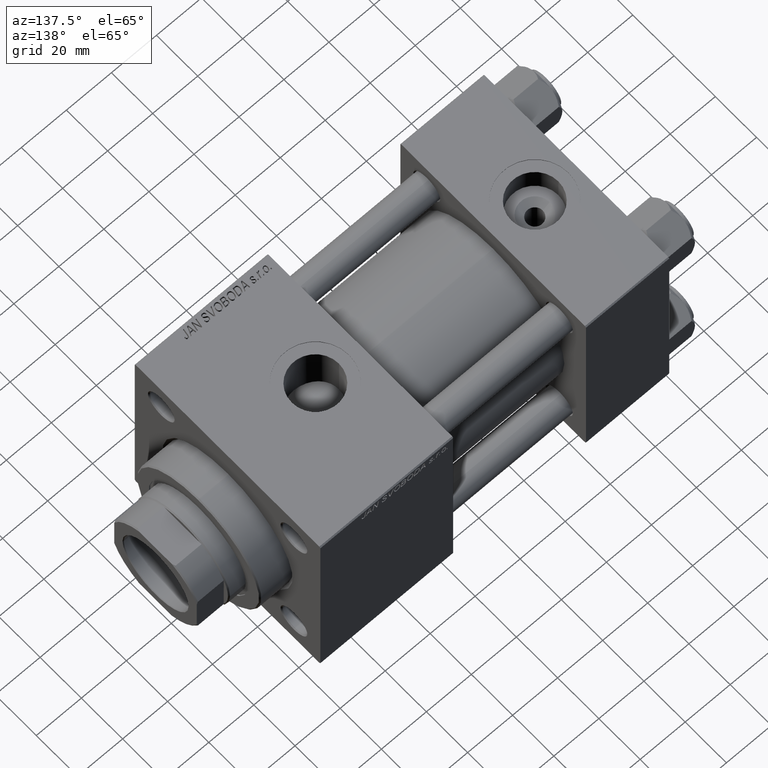
[diagram: clean part render]
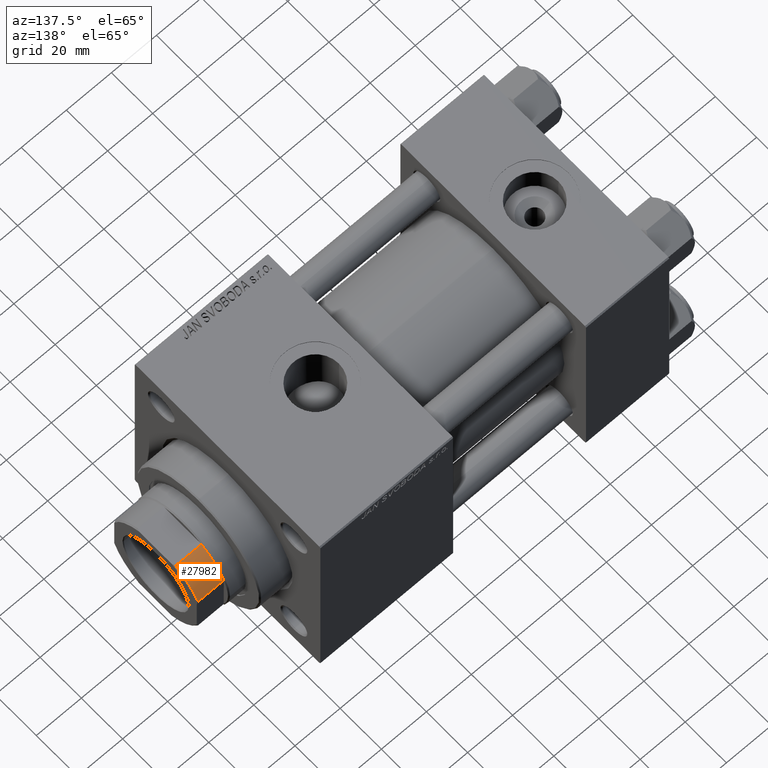
[diagram: same view with one face highlighted and labeled with its STEP entity id]
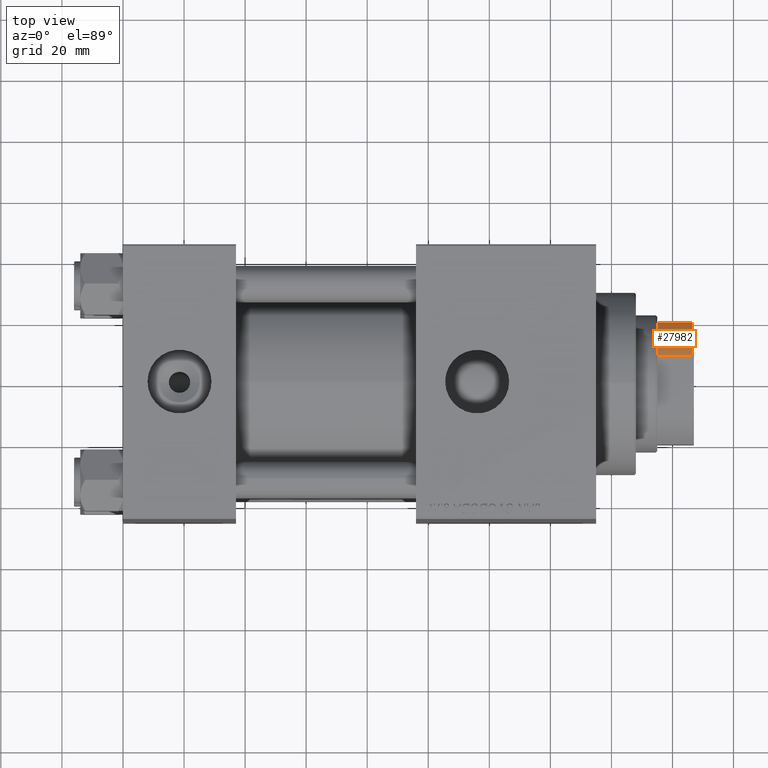
[diagram: same view with one face highlighted and labeled with its STEP entity id]
A machine part, auxiliary view. The second image highlights one B-rep face of the part: STEP entity #27982.
A second angle (top view) of the same face is appended — the face is thin or edge-on in the first view.
In plain terms, the highlighted cylindrical surface (partial cylindrical patch) has radius 22 mm, axis along (1, 0, 0).
Its self-contained STEP definition (entity closure, byte-faithful):
#5520 = DIRECTION ( 'NONE',  ( -0.000000000000000000, -0.000000000000000000, 1.000000000000000000 ) ) ;
#6750 = EDGE_CURVE ( 'NONE', #27773, #8559, #46295, .T. ) ;
#7976 = ORIENTED_EDGE ( 'NONE', *, *, #22893, .T. ) ;
#8110 = VERTEX_POINT ( 'NONE', #41006 ) ;
#8559 = VERTEX_POINT ( 'NONE', #36552 ) ;
#9326 = LINE ( 'NONE', #24792, #31337 ) ;
#9855 = CARTESIAN_POINT ( 'NONE',  ( 0.000000000000000000, 0.000000000000000000, -0.001000000000001000089 ) ) ;
#10619 = ORIENTED_EDGE ( 'NONE', *, *, #6750, .T. ) ;
#15261 = EDGE_CURVE ( 'NONE', #8110, #8559, #45260, .T. ) ;
#16009 = ORIENTED_EDGE ( 'NONE', *, *, #25589, .T. ) ;
#16452 = DIRECTION ( 'NONE',  ( 1.000000000000000000, 0.000000000000000000, 0.000000000000000000 ) ) ;
#17720 = DIRECTION ( 'NONE',  ( 1.000000000000000000, 0.000000000000000000, 0.000000000000000000 ) ) ;
#18178 = EDGE_LOOP ( 'NONE', ( #16009, #10619, #43225, #7976 ) ) ;
#18429 = AXIS2_PLACEMENT_3D ( 'NONE', #9855, #28879, #17720 ) ;
#19774 = VECTOR ( 'NONE', #21451, 1000.000000000000000 ) ;
#21451 = DIRECTION ( 'NONE',  ( -0.000000000000000000, -0.000000000000000000, 1.000000000000000000 ) ) ;
#22071 = CARTESIAN_POINT ( 'NONE',  ( -9.165151389911676105, -20.00000000000000000, 149.5000000000000568 ) ) ;
#22249 = CYLINDRICAL_SURFACE ( 'NONE', #18429, 22.00000000000000000 ) ;
#22893 = EDGE_CURVE ( 'NONE', #8110, #29168, #39316, .T. ) ;
#23078 = CARTESIAN_POINT ( 'NONE',  ( -9.165151389911676105, -20.00000000000000000, 138.0000000000000568 ) ) ;
#24292 = DIRECTION ( 'NONE',  ( 0.000000000000000000, 0.000000000000000000, 1.000000000000000000 ) ) ;
#24792 = CARTESIAN_POINT ( 'NONE',  ( -9.165151389911676105, -20.00000000000000000, -0.001000000000001000089 ) ) ;
#25516 = CARTESIAN_POINT ( 'NONE',  ( 0.000000000000000000, 0.000000000000000000, 149.5000000000000568 ) ) ;
#25589 = EDGE_CURVE ( 'NONE', #29168, #27773, #9326, .T. ) ;
#27773 = VERTEX_POINT ( 'NONE', #22071 ) ;
#27982 = ADVANCED_FACE ( 'NONE', ( #28133 ), #22249, .T. ) ;
#28133 = FACE_OUTER_BOUND ( 'NONE', #18178, .T. ) ;
#28879 = DIRECTION ( 'NONE',  ( -0.000000000000000000, -0.000000000000000000, 1.000000000000000000 ) ) ;
#29168 = VERTEX_POINT ( 'NONE', #23078 ) ;
#29825 = DIRECTION ( 'NONE',  ( 1.000000000000000000, 0.000000000000000000, 0.000000000000000000 ) ) ;
#31337 = VECTOR ( 'NONE', #5520, 1000.000000000000000 ) ;
#33636 = CARTESIAN_POINT ( 'NONE',  ( -20.00000000000000000, -9.165151389911677882, -0.001000000000001000089 ) ) ;
#36552 = CARTESIAN_POINT ( 'NONE',  ( -20.00000000000000000, -9.165151389911677882, 149.5000000000000568 ) ) ;
#39316 = CIRCLE ( 'NONE', #40933, 22.00000000000004619 ) ;
#40933 = AXIS2_PLACEMENT_3D ( 'NONE', #43552, #24292, #16452 ) ;
#41006 = CARTESIAN_POINT ( 'NONE',  ( -20.00000000000000000, -9.165151389911677882, 138.0000000000000568 ) ) ;
#43225 = ORIENTED_EDGE ( 'NONE', *, *, #15261, .F. ) ;
#43552 = CARTESIAN_POINT ( 'NONE',  ( 0.000000000000000000, 0.000000000000000000, 138.0000000000000000 ) ) ;
#44526 = DIRECTION ( 'NONE',  ( -0.000000000000000000, -0.000000000000000000, -1.000000000000000000 ) ) ;
#45260 = LINE ( 'NONE', #33636, #19774 ) ;
#46295 = CIRCLE ( 'NONE', #49526, 22.00000000000000000 ) ;
#49526 = AXIS2_PLACEMENT_3D ( 'NONE', #25516, #44526, #29825 ) ;